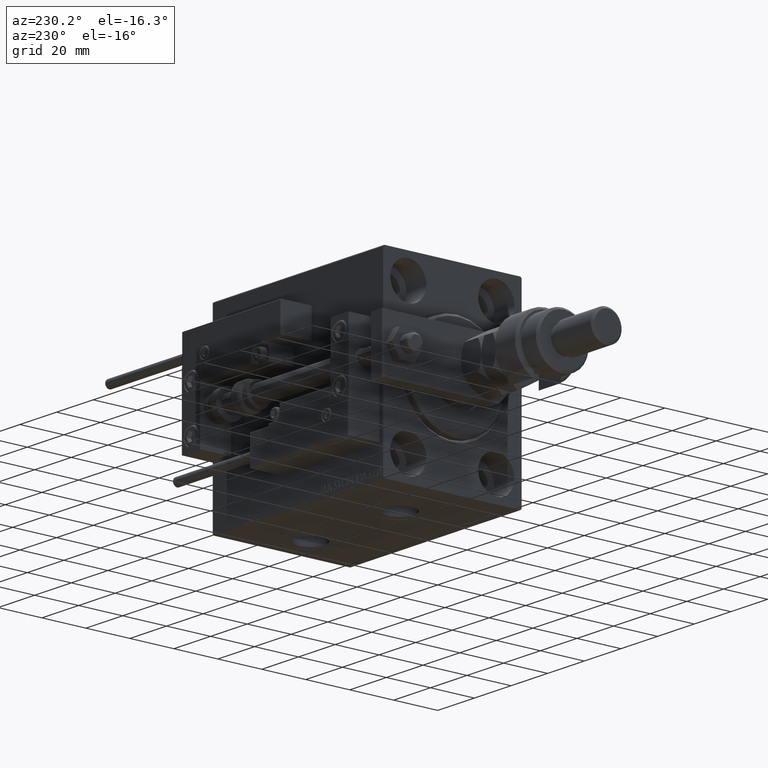
[diagram: clean part render]
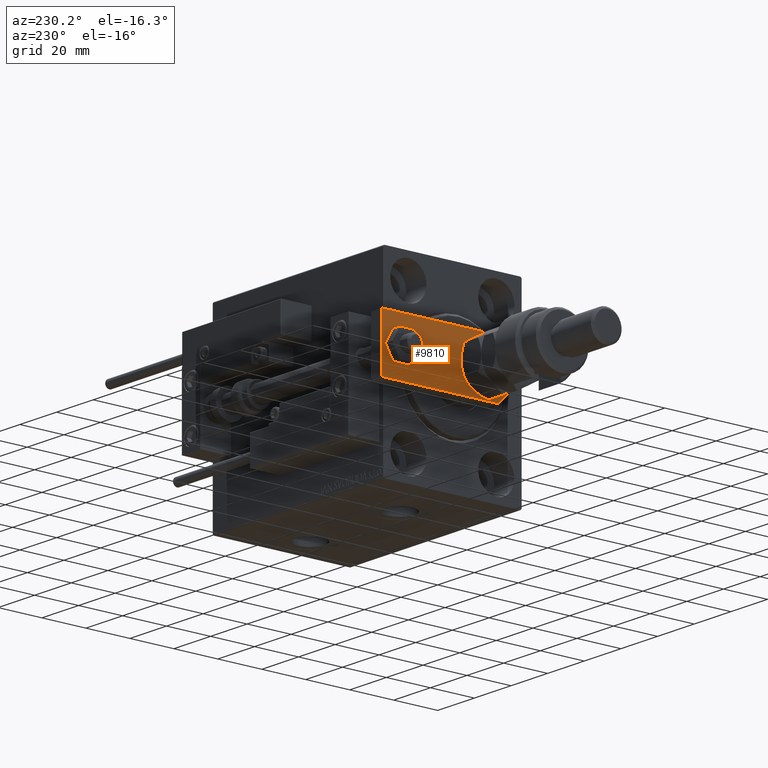
[diagram: same view with one face highlighted and labeled with its STEP entity id]
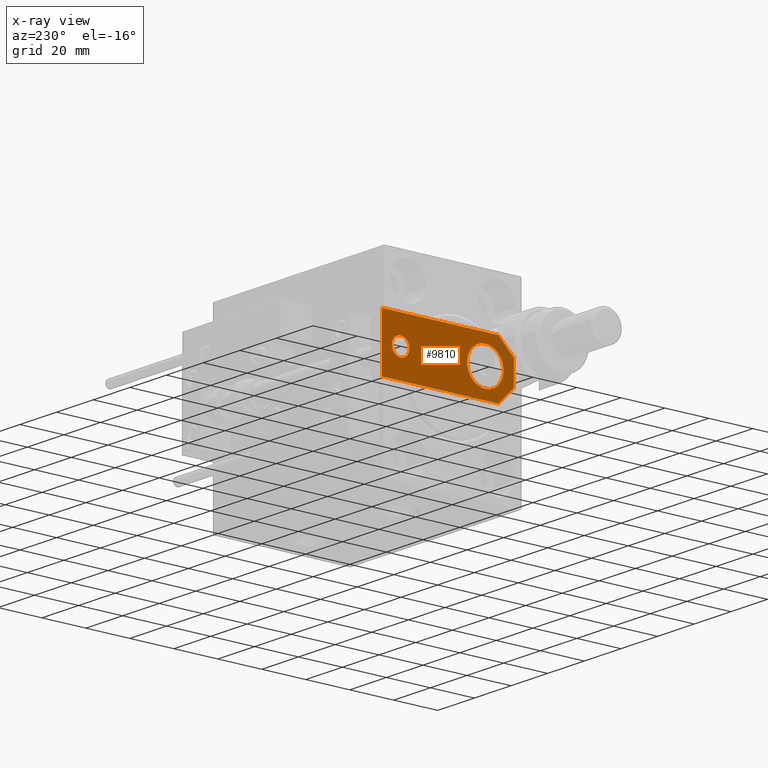
[diagram: x-ray of the same camera — body ghosted, the highlighted face saturated]
A machine part, auxiliary view. The second image highlights one B-rep face of the part: STEP entity #9810.
The next image is the same camera in x-ray: the body ghosted, the highlighted face saturated — about 7% of this face is hidden behind the body in this view.
In plain terms, the highlighted planar face has unit normal (-1, 0, 0).
Its self-contained STEP definition (entity closure, byte-faithful):
#194 = EDGE_CURVE ( 'NONE', #54300, #11192, #8919, .T. ) ;
#345 = AXIS2_PLACEMENT_3D ( 'NONE', #15988, #45975, #15706 ) ;
#1059 = CARTESIAN_POINT ( 'NONE',  ( -2.750000000000013767, -2.750000000000005773, 6.000000000000000000 ) ) ;
#4105 = DIRECTION ( 'NONE',  ( 0.7071067811865465735, -0.7071067811865485719, 0.000000000000000000 ) ) ;
#4286 = ORIENTED_EDGE ( 'NONE', *, *, #23679, .T. ) ;
#5129 = CARTESIAN_POINT ( 'NONE',  ( -5.500000000000010658, 4.814824860968089633E-32, 6.000000000000000000 ) ) ;
#5352 = ORIENTED_EDGE ( 'NONE', *, *, #35738, .T. ) ;
#5388 = AXIS2_PLACEMENT_3D ( 'NONE', #31772, #20240, #48556 ) ;
#6370 = VECTOR ( 'NONE', #31788, 1000.000000000000000 ) ;
#6434 = EDGE_CURVE ( 'NONE', #51977, #28321, #42573, .T. ) ;
#7111 = CARTESIAN_POINT ( 'NONE',  ( -4.000000000000000888, 51.50000000000000000, 6.000000000000000000 ) ) ;
#7301 = VECTOR ( 'NONE', #18438, 1000.000000000000000 ) ;
#7496 = EDGE_CURVE ( 'NONE', #28321, #12683, #10911, .T. ) ;
#7863 = CARTESIAN_POINT ( 'NONE',  ( 5.499999999999976907, 4.814824860968089633E-32, 6.000000000000000000 ) ) ;
#8919 = CIRCLE ( 'NONE', #5388, 8.250000000000000000 ) ;
#9810 = ADVANCED_FACE ( 'NONE', ( #36603, #24534, #24256 ), #29200, .T. ) ;
#10911 = LINE ( 'NONE', #22762, #6370 ) ;
#11192 = VERTEX_POINT ( 'NONE', #13443 ) ;
#11297 = AXIS2_PLACEMENT_3D ( 'NONE', #49101, #41131, #20232 ) ;
#11736 = ORIENTED_EDGE ( 'NONE', *, *, #36618, .T. ) ;
#12683 = VERTEX_POINT ( 'NONE', #7863 ) ;
#12846 = VECTOR ( 'NONE', #45530, 1000.000000000000000 ) ;
#13443 = CARTESIAN_POINT ( 'NONE',  ( 8.250000000000000000, 13.00000000000000000, 6.000000000000000000 ) ) ;
#13504 = EDGE_LOOP ( 'NONE', ( #37236, #16256 ) ) ;
#13932 = CIRCLE ( 'NONE', #11297, 4.000000000000000888 ) ;
#14806 = CARTESIAN_POINT ( 'NONE',  ( 12.50000000000000355, 60.00000000000000000, 6.000000000000000000 ) ) ;
#15686 = AXIS2_PLACEMENT_3D ( 'NONE', #41273, #37686, #16243 ) ;
#15706 = DIRECTION ( 'NONE',  ( 1.000000000000000000, 0.000000000000000000, 0.000000000000000000 ) ) ;
#15829 = LINE ( 'NONE', #16107, #36197 ) ;
#15988 = CARTESIAN_POINT ( 'NONE',  ( 0.000000000000000000, 0.000000000000000000, 6.000000000000000000 ) ) ;
#16107 = CARTESIAN_POINT ( 'NONE',  ( 2.749999999999980016, -2.749999999999988010, 6.000000000000000000 ) ) ;
#16243 = DIRECTION ( 'NONE',  ( 1.000000000000000000, 0.000000000000000000, 0.000000000000000000 ) ) ;
#16256 = ORIENTED_EDGE ( 'NONE', *, *, #23995, .F. ) ;
#16266 = VERTEX_POINT ( 'NONE', #16966 ) ;
#16966 = CARTESIAN_POINT ( 'NONE',  ( 4.000000000000000888, 51.50000000000000000, 6.000000000000000000 ) ) ;
#17884 = EDGE_CURVE ( 'NONE', #19617, #35102, #24632, .T. ) ;
#18438 = DIRECTION ( 'NONE',  ( 0.000000000000000000, 1.000000000000000000, 0.000000000000000000 ) ) ;
#18448 = VERTEX_POINT ( 'NONE', #7111 ) ;
#19617 = VERTEX_POINT ( 'NONE', #14806 ) ;
#20232 = DIRECTION ( 'NONE',  ( 1.000000000000000000, 0.000000000000000000, 0.000000000000000000 ) ) ;
#20240 = DIRECTION ( 'NONE',  ( 0.000000000000000000, 0.000000000000000000, 1.000000000000000000 ) ) ;
#20293 = EDGE_CURVE ( 'NONE', #11192, #54300, #25253, .T. ) ;
#21939 = CARTESIAN_POINT ( 'NONE',  ( -12.50000000000000355, 7.000000000000013323, 6.000000000000000000 ) ) ;
#22305 = LINE ( 'NONE', #47322, #7301 ) ;
#22762 = CARTESIAN_POINT ( 'NONE',  ( -12.50000000000000355, 4.814824860968089633E-32, 6.000000000000000000 ) ) ;
#23679 = EDGE_CURVE ( 'NONE', #35102, #51977, #27996, .T. ) ;
#23995 = EDGE_CURVE ( 'NONE', #16266, #18448, #13932, .T. ) ;
#24255 = EDGE_CURVE ( 'NONE', #18448, #16266, #39417, .T. ) ;
#24256 = FACE_BOUND ( 'NONE', #29943, .T. ) ;
#24534 = FACE_OUTER_BOUND ( 'NONE', #27874, .T. ) ;
#24632 = LINE ( 'NONE', #36432, #12846 ) ;
#25253 = CIRCLE ( 'NONE', #35755, 8.250000000000000000 ) ;
#25442 = CARTESIAN_POINT ( 'NONE',  ( -12.49999999999999822, 60.00000000000000000, 6.000000000000000000 ) ) ;
#25670 = DIRECTION ( 'NONE',  ( 0.000000000000000000, 0.000000000000000000, 1.000000000000000000 ) ) ;
#26924 = DIRECTION ( 'NONE',  ( -8.673617379884035472E-17, -1.000000000000000000, 0.000000000000000000 ) ) ;
#27669 = DIRECTION ( 'NONE',  ( 0.7071067811865486830, 0.7071067811865464625, -0.000000000000000000 ) ) ;
#27874 = EDGE_LOOP ( 'NONE', ( #4286, #49107, #45512, #5352, #11736, #50365 ) ) ;
#27996 = LINE ( 'NONE', #47829, #41184 ) ;
#28321 = VERTEX_POINT ( 'NONE', #5129 ) ;
#29200 = PLANE ( 'NONE',  #345 ) ;
#29790 = CARTESIAN_POINT ( 'NONE',  ( -9.629649721936179265E-32, 12.99999999999999822, 6.000000000000000000 ) ) ;
#29943 = EDGE_LOOP ( 'NONE', ( #45616, #49334 ) ) ;
#31273 = CARTESIAN_POINT ( 'NONE',  ( 12.50000000000000355, 7.000000000000006217, 6.000000000000000000 ) ) ;
#31772 = CARTESIAN_POINT ( 'NONE',  ( -9.629649721936179265E-32, 12.99999999999999822, 6.000000000000000000 ) ) ;
#31788 = DIRECTION ( 'NONE',  ( 1.000000000000000000, 0.000000000000000000, 0.000000000000000000 ) ) ;
#35102 = VERTEX_POINT ( 'NONE', #25442 ) ;
#35738 = EDGE_CURVE ( 'NONE', #12683, #44862, #15829, .T. ) ;
#35755 = AXIS2_PLACEMENT_3D ( 'NONE', #29790, #25670, #42445 ) ;
#36197 = VECTOR ( 'NONE', #27669, 999.9999999999998863 ) ;
#36432 = CARTESIAN_POINT ( 'NONE',  ( 12.50000000000000355, 60.00000000000000000, 6.000000000000000000 ) ) ;
#36603 = FACE_BOUND ( 'NONE', #13504, .T. ) ;
#36618 = EDGE_CURVE ( 'NONE', #44862, #19617, #22305, .T. ) ;
#37236 = ORIENTED_EDGE ( 'NONE', *, *, #24255, .F. ) ;
#37686 = DIRECTION ( 'NONE',  ( 0.000000000000000000, 0.000000000000000000, 1.000000000000000000 ) ) ;
#39417 = CIRCLE ( 'NONE', #15686, 4.000000000000000888 ) ;
#41131 = DIRECTION ( 'NONE',  ( 0.000000000000000000, 0.000000000000000000, 1.000000000000000000 ) ) ;
#41184 = VECTOR ( 'NONE', #26924, 1000.000000000000000 ) ;
#41273 = CARTESIAN_POINT ( 'NONE',  ( -1.432611055310774642E-16, 51.50000000000000000, 6.000000000000000000 ) ) ;
#41997 = CARTESIAN_POINT ( 'NONE',  ( -8.250000000000000000, 12.99999999999999822, 6.000000000000000000 ) ) ;
#42445 = DIRECTION ( 'NONE',  ( 1.000000000000000000, 0.000000000000000000, 0.000000000000000000 ) ) ;
#42573 = LINE ( 'NONE', #1059, #43246 ) ;
#43246 = VECTOR ( 'NONE', #4105, 1000.000000000000000 ) ;
#44862 = VERTEX_POINT ( 'NONE', #31273 ) ;
#45512 = ORIENTED_EDGE ( 'NONE', *, *, #7496, .T. ) ;
#45530 = DIRECTION ( 'NONE',  ( -1.000000000000000000, 0.000000000000000000, 0.000000000000000000 ) ) ;
#45616 = ORIENTED_EDGE ( 'NONE', *, *, #194, .F. ) ;
#45975 = DIRECTION ( 'NONE',  ( -0.000000000000000000, 0.000000000000000000, 1.000000000000000000 ) ) ;
#47322 = CARTESIAN_POINT ( 'NONE',  ( 12.50000000000000355, 4.814824860968089633E-32, 6.000000000000000000 ) ) ;
#47829 = CARTESIAN_POINT ( 'NONE',  ( -12.49999999999999822, 60.00000000000000000, 6.000000000000000000 ) ) ;
#48556 = DIRECTION ( 'NONE',  ( 1.000000000000000000, 0.000000000000000000, 0.000000000000000000 ) ) ;
#49101 = CARTESIAN_POINT ( 'NONE',  ( -1.432611055310774642E-16, 51.50000000000000000, 6.000000000000000000 ) ) ;
#49107 = ORIENTED_EDGE ( 'NONE', *, *, #6434, .T. ) ;
#49334 = ORIENTED_EDGE ( 'NONE', *, *, #20293, .F. ) ;
#50365 = ORIENTED_EDGE ( 'NONE', *, *, #17884, .T. ) ;
#51977 = VERTEX_POINT ( 'NONE', #21939 ) ;
#54300 = VERTEX_POINT ( 'NONE', #41997 ) ;